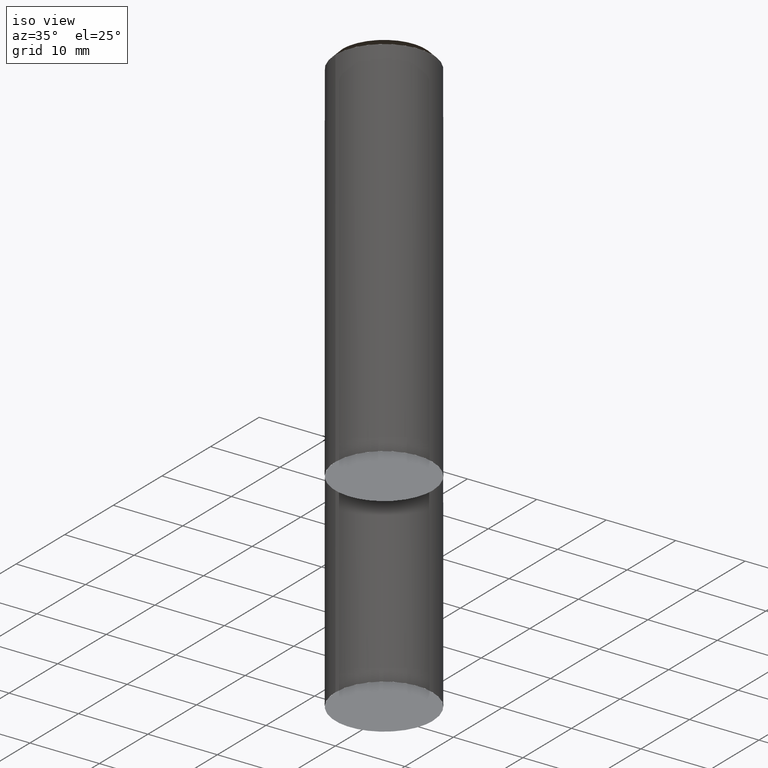
[diagram: clean part render]
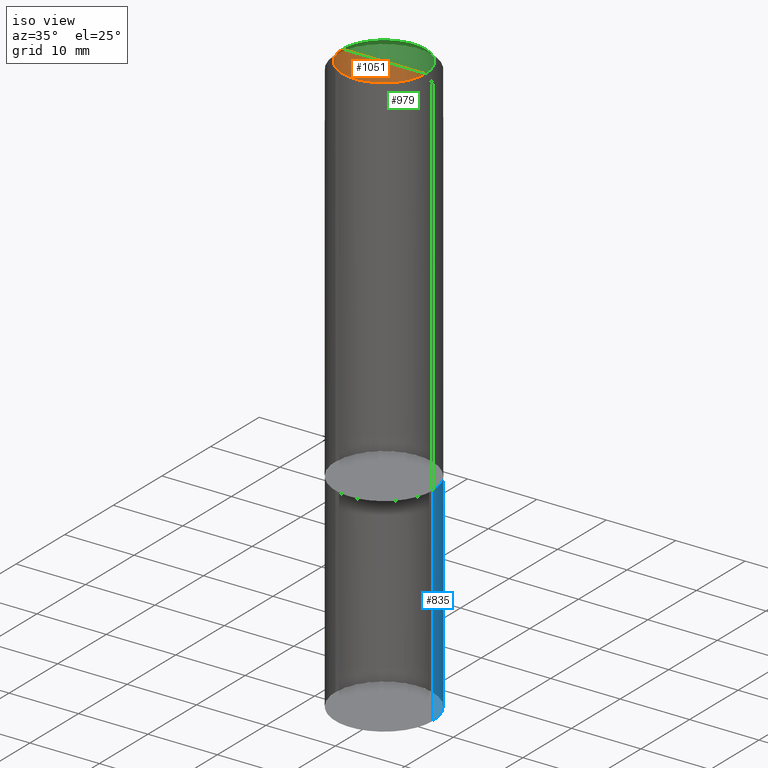
[diagram: same view with three faces highlighted in distinct colors, each labeled with its STEP entity id]
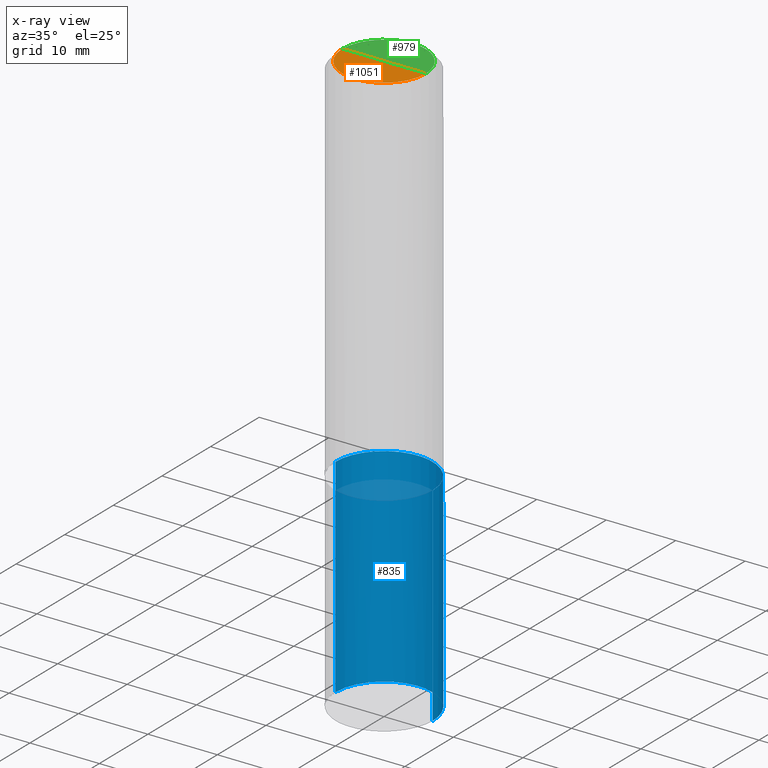
[diagram: x-ray of the same camera — body ghosted, the three highlighted faces saturated]
A machine part, iso view with three faces highlighted in distinct colors.
The next image is the same camera in x-ray (body ghosted, the three faces saturated) — at least one of them is partly hidden behind the body in this view.
Their STEP definitions:

[orange] entity #1051 — the highlighted face is a freeform B-spline surface patch.
#783=CARTESIAN_POINT('',(6.0,0.0,54.0));
#787=CARTESIAN_POINT('',(-6.0,0.0,54.0));
#788=CARTESIAN_POINT('',(0.0,0.0,54.0));
#792=CARTESIAN_POINT('',(-6.0,-6.0,54.0));
#793=CARTESIAN_POINT('',(0.0,-6.0,54.0));
#794=CARTESIAN_POINT('',(6.0,-6.0,54.0));
#1036=(
BOUNDED_SURFACE()
B_SPLINE_SURFACE(1,2,(
(#787,#792,#793,#794,#783),
(#788,#788,#788,#788,#788)
), .UNSPECIFIED.,.F.,.F.,.F.)
B_SPLINE_SURFACE_WITH_KNOTS((2,2),(3,2,3),(
0.0,1.0),(
0.0,0.5,1.0), .UNSPECIFIED.)
GEOMETRIC_REPRESENTATION_ITEM()
RATIONAL_B_SPLINE_SURFACE(((1.0,0.707106781187,1.0,0.707106781187,1.0),
(1.0,0.707106781187,1.0,0.707106781187,1.0)
))
REPRESENTATION_ITEM('')
SURFACE()
);
#1037=(
BOUNDED_CURVE()
B_SPLINE_CURVE(2,(#783,#794,#793,#792,#787),.UNSPECIFIED.,.F.,.F.)
B_SPLINE_CURVE_WITH_KNOTS((3,2,3),
(0.0,0.5,1.0),.UNSPECIFIED.)
CURVE()
GEOMETRIC_REPRESENTATION_ITEM()
RATIONAL_B_SPLINE_CURVE((1.0,0.707106781187,1.0,0.707106781187,1.0))
REPRESENTATION_ITEM('')
);
#1038=(
BOUNDED_CURVE()
B_SPLINE_CURVE(1,(#787,#788),.UNSPECIFIED.,.F.,.F.)
B_SPLINE_CURVE_WITH_KNOTS((2,2),
(0.0,1.0),.UNSPECIFIED.)
CURVE()
GEOMETRIC_REPRESENTATION_ITEM()
RATIONAL_B_SPLINE_CURVE((1.0,1.0))
REPRESENTATION_ITEM('')
);
#1039=(
BOUNDED_CURVE()
B_SPLINE_CURVE(1,(#788,#783),.UNSPECIFIED.,.F.,.F.)
B_SPLINE_CURVE_WITH_KNOTS((2,2),
(0.0,1.0),.UNSPECIFIED.)
CURVE()
GEOMETRIC_REPRESENTATION_ITEM()
RATIONAL_B_SPLINE_CURVE((1.0,1.0))
REPRESENTATION_ITEM('')
);
#1040=VERTEX_POINT('',#783);
#1041=VERTEX_POINT('',#787);
#1042=VERTEX_POINT('',#788);
#1043=EDGE_CURVE('',#1040,#1041,#1037,.T.);
#1044=EDGE_CURVE('',#1041,#1042,#1038,.T.);
#1045=EDGE_CURVE('',#1042,#1040,#1039,.T.);
#1046=ORIENTED_EDGE('',*,*,#1043,.T.);
#1047=ORIENTED_EDGE('',*,*,#1044,.T.);
#1048=ORIENTED_EDGE('',*,*,#1045,.T.);
#1049=EDGE_LOOP('',(#1046,#1047,#1048));
#1050=FACE_OUTER_BOUND('',#1049,.T.);
#1051=ADVANCED_FACE('',(#1050),#1036,.T.);

[blue] entity #835 — the highlighted face is a freeform B-spline surface patch.
#460=CARTESIAN_POINT('',(0.0,7.0,-30.0));
#763=CARTESIAN_POINT('',(7.0,0.0,-30.0));
#764=CARTESIAN_POINT('',(7.0,7.0,-30.0));
#765=CARTESIAN_POINT('',(-7.0,7.0,-30.0));
#766=CARTESIAN_POINT('',(-7.0,0.0,-30.0));
#767=CARTESIAN_POINT('',(7.0,0.0,0.0));
#768=CARTESIAN_POINT('',(7.0,7.0,0.0));
#769=CARTESIAN_POINT('',(0.0,7.0,0.0));
#770=CARTESIAN_POINT('',(-7.0,7.0,0.0));
#771=CARTESIAN_POINT('',(-7.0,0.0,0.0));
#816=(
BOUNDED_SURFACE()
B_SPLINE_SURFACE(1,2,(
(#763,#764,#460,#765,#766),
(#767,#768,#769,#770,#771)
), .UNSPECIFIED.,.F.,.F.,.F.)
B_SPLINE_SURFACE_WITH_KNOTS((2,2),(3,2,3),(
0.0,1.0),(
0.0,0.5,1.0), .UNSPECIFIED.)
GEOMETRIC_REPRESENTATION_ITEM()
RATIONAL_B_SPLINE_SURFACE(((1.0,0.707106781187,1.0,0.707106781187,1.0),
(1.0,0.707106781187,1.0,0.707106781187,1.0)
))
REPRESENTATION_ITEM('')
SURFACE()
);
#817=(
BOUNDED_CURVE()
B_SPLINE_CURVE(2,(#766,#765,#460,#764,#763),.UNSPECIFIED.,.F.,.F.)
B_SPLINE_CURVE_WITH_KNOTS((3,2,3),
(0.0,0.5,1.0),.UNSPECIFIED.)
CURVE()
GEOMETRIC_REPRESENTATION_ITEM()
RATIONAL_B_SPLINE_CURVE((1.0,0.707106781187,1.0,0.707106781187,1.0))
REPRESENTATION_ITEM('')
);
#818=(
BOUNDED_CURVE()
B_SPLINE_CURVE(1,(#763,#767),.UNSPECIFIED.,.F.,.F.)
B_SPLINE_CURVE_WITH_KNOTS((2,2),
(0.0,1.0),.UNSPECIFIED.)
CURVE()
GEOMETRIC_REPRESENTATION_ITEM()
RATIONAL_B_SPLINE_CURVE((1.0,1.0))
REPRESENTATION_ITEM('')
);
#819=(
BOUNDED_CURVE()
B_SPLINE_CURVE(2,(#767,#768,#769,#770,#771),.UNSPECIFIED.,.F.,.F.)
B_SPLINE_CURVE_WITH_KNOTS((3,2,3),
(0.0,0.5,1.0),.UNSPECIFIED.)
CURVE()
GEOMETRIC_REPRESENTATION_ITEM()
RATIONAL_B_SPLINE_CURVE((1.0,0.707106781187,1.0,0.707106781187,1.0))
REPRESENTATION_ITEM('')
);
#820=(
BOUNDED_CURVE()
B_SPLINE_CURVE(1,(#771,#766),.UNSPECIFIED.,.F.,.F.)
B_SPLINE_CURVE_WITH_KNOTS((2,2),
(0.0,1.0),.UNSPECIFIED.)
CURVE()
GEOMETRIC_REPRESENTATION_ITEM()
RATIONAL_B_SPLINE_CURVE((1.0,1.0))
REPRESENTATION_ITEM('')
);
#821=VERTEX_POINT('',#763);
#822=VERTEX_POINT('',#766);
#823=VERTEX_POINT('',#767);
#824=VERTEX_POINT('',#771);
#825=EDGE_CURVE('',#822,#821,#817,.T.);
#826=EDGE_CURVE('',#821,#823,#818,.T.);
#827=EDGE_CURVE('',#823,#824,#819,.T.);
#828=EDGE_CURVE('',#824,#822,#820,.T.);
#829=ORIENTED_EDGE('',*,*,#825,.T.);
#830=ORIENTED_EDGE('',*,*,#826,.T.);
#831=ORIENTED_EDGE('',*,*,#827,.T.);
#832=ORIENTED_EDGE('',*,*,#828,.T.);
#833=EDGE_LOOP('',(#829,#830,#831,#832));
#834=FACE_OUTER_BOUND('',#833,.T.);
#835=ADVANCED_FACE('',(#834),#816,.T.);

[green] entity #979 — the highlighted face is a freeform B-spline surface patch.
#783=CARTESIAN_POINT('',(6.0,0.0,54.0));
#784=CARTESIAN_POINT('',(6.0,6.0,54.0));
#785=CARTESIAN_POINT('',(0.0,6.0,54.0));
#786=CARTESIAN_POINT('',(-6.0,6.0,54.0));
#787=CARTESIAN_POINT('',(-6.0,0.0,54.0));
#788=CARTESIAN_POINT('',(0.0,0.0,54.0));
#964=(
BOUNDED_SURFACE()
B_SPLINE_SURFACE(1,2,(
(#783,#784,#785,#786,#787),
(#788,#788,#788,#788,#788)
), .UNSPECIFIED.,.F.,.F.,.F.)
B_SPLINE_SURFACE_WITH_KNOTS((2,2),(3,2,3),(
0.0,1.0),(
0.0,0.5,1.0), .UNSPECIFIED.)
GEOMETRIC_REPRESENTATION_ITEM()
RATIONAL_B_SPLINE_SURFACE(((1.0,0.707106781187,1.0,0.707106781187,1.0),
(1.0,0.707106781187,1.0,0.707106781187,1.0)
))
REPRESENTATION_ITEM('')
SURFACE()
);
#965=(
BOUNDED_CURVE()
B_SPLINE_CURVE(2,(#787,#786,#785,#784,#783),.UNSPECIFIED.,.F.,.F.)
B_SPLINE_CURVE_WITH_KNOTS((3,2,3),
(0.0,0.5,1.0),.UNSPECIFIED.)
CURVE()
GEOMETRIC_REPRESENTATION_ITEM()
RATIONAL_B_SPLINE_CURVE((1.0,0.707106781187,1.0,0.707106781187,1.0))
REPRESENTATION_ITEM('')
);
#966=(
BOUNDED_CURVE()
B_SPLINE_CURVE(1,(#783,#788),.UNSPECIFIED.,.F.,.F.)
B_SPLINE_CURVE_WITH_KNOTS((2,2),
(0.0,1.0),.UNSPECIFIED.)
CURVE()
GEOMETRIC_REPRESENTATION_ITEM()
RATIONAL_B_SPLINE_CURVE((1.0,1.0))
REPRESENTATION_ITEM('')
);
#967=(
BOUNDED_CURVE()
B_SPLINE_CURVE(1,(#788,#787),.UNSPECIFIED.,.F.,.F.)
B_SPLINE_CURVE_WITH_KNOTS((2,2),
(0.0,1.0),.UNSPECIFIED.)
CURVE()
GEOMETRIC_REPRESENTATION_ITEM()
RATIONAL_B_SPLINE_CURVE((1.0,1.0))
REPRESENTATION_ITEM('')
);
#968=VERTEX_POINT('',#783);
#969=VERTEX_POINT('',#787);
#970=VERTEX_POINT('',#788);
#971=EDGE_CURVE('',#969,#968,#965,.T.);
#972=EDGE_CURVE('',#968,#970,#966,.T.);
#973=EDGE_CURVE('',#970,#969,#967,.T.);
#974=ORIENTED_EDGE('',*,*,#971,.T.);
#975=ORIENTED_EDGE('',*,*,#972,.T.);
#976=ORIENTED_EDGE('',*,*,#973,.T.);
#977=EDGE_LOOP('',(#974,#975,#976));
#978=FACE_OUTER_BOUND('',#977,.T.);
#979=ADVANCED_FACE('',(#978),#964,.T.);